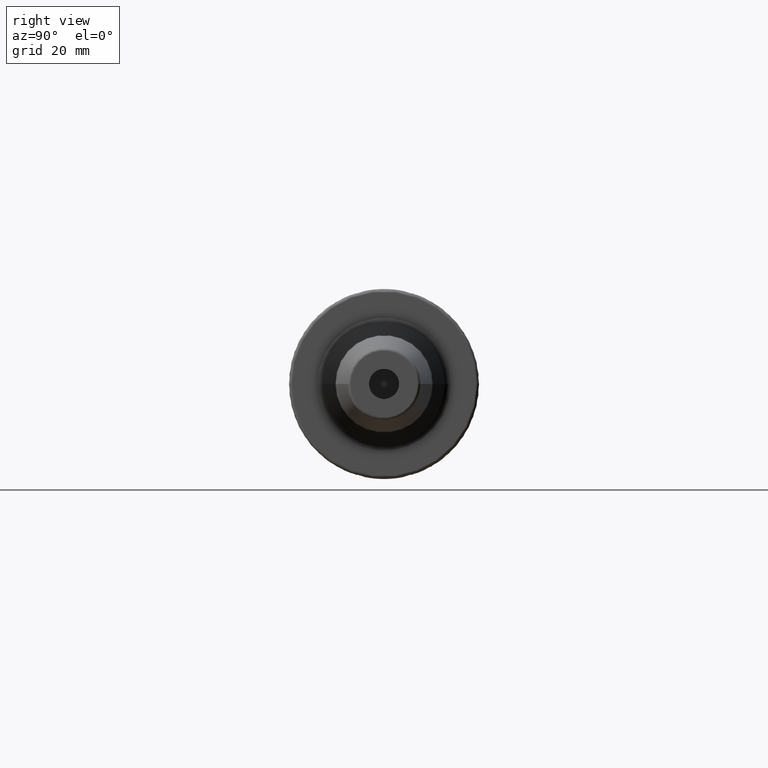
[diagram: clean part render]
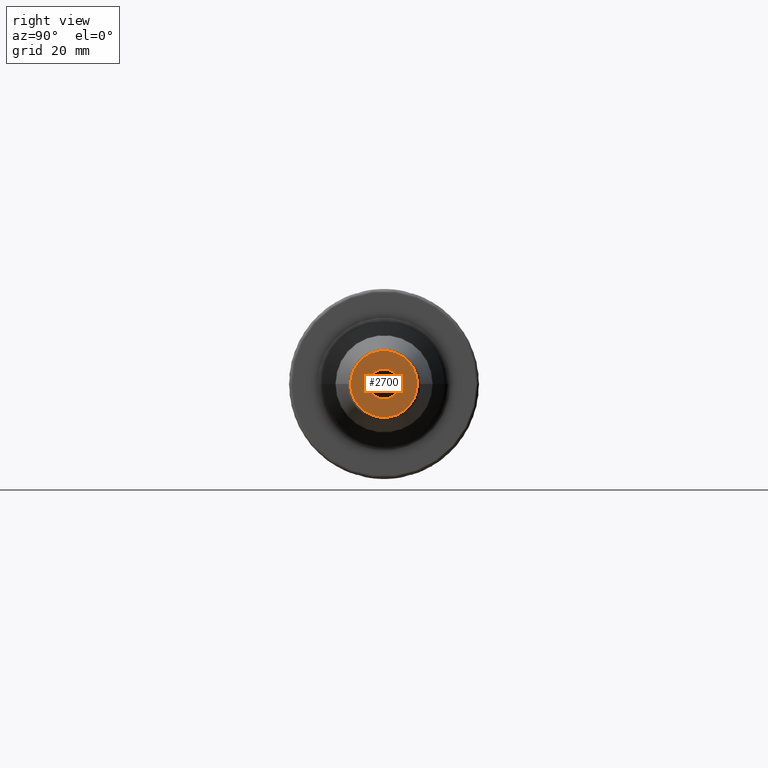
[diagram: same view with one face highlighted and labeled with its STEP entity id]
A machine part, right view. The second image highlights one B-rep face of the part: STEP entity #2700.
In plain terms, the highlighted planar face has unit normal (1, 0, 0).
Its self-contained STEP definition (entity closure, byte-faithful):
#932=CARTESIAN_POINT('',(1.6E2,0.E0,0.E0));
#933=DIRECTION('',(-1.E0,0.E0,0.E0));
#934=DIRECTION('',(0.E0,1.E0,0.E0));
#935=AXIS2_PLACEMENT_3D('',#932,#933,#934);
#937=CARTESIAN_POINT('',(1.6E2,0.E0,0.E0));
#938=DIRECTION('',(-1.E0,0.E0,0.E0));
#939=DIRECTION('',(0.E0,-1.E0,0.E0));
#940=AXIS2_PLACEMENT_3D('',#937,#938,#939);
#942=CARTESIAN_POINT('',(1.6E2,0.E0,0.E0));
#943=DIRECTION('',(1.E0,0.E0,0.E0));
#944=DIRECTION('',(0.E0,1.E0,0.E0));
#945=AXIS2_PLACEMENT_3D('',#942,#943,#944);
#947=CARTESIAN_POINT('',(1.6E2,0.E0,0.E0));
#948=DIRECTION('',(1.E0,0.E0,0.E0));
#949=DIRECTION('',(0.E0,-1.E0,0.E0));
#950=AXIS2_PLACEMENT_3D('',#947,#948,#949);
#1417=CARTESIAN_POINT('',(1.6E2,5.E0,0.E0));
#1418=VERTEX_POINT('',#1417);
#1419=CARTESIAN_POINT('',(1.6E2,-5.E0,0.E0));
#1420=VERTEX_POINT('',#1419);
#1429=CARTESIAN_POINT('',(1.6E2,1.107560950834E1,0.E0));
#1430=CARTESIAN_POINT('',(1.6E2,-1.107560950834E1,0.E0));
#1431=VERTEX_POINT('',#1429);
#1432=VERTEX_POINT('',#1430);
#2685=CARTESIAN_POINT('',(1.6E2,0.E0,0.E0));
#2686=DIRECTION('',(1.E0,0.E0,0.E0));
#2687=DIRECTION('',(0.E0,-1.E0,0.E0));
#2688=AXIS2_PLACEMENT_3D('',#2685,#2686,#2687);
#2689=PLANE('',#2688);
#2690=ORIENTED_EDGE('',*,*,#2667,.T.);
#2691=ORIENTED_EDGE('',*,*,#2652,.T.);
#2692=EDGE_LOOP('',(#2690,#2691));
#2693=FACE_OUTER_BOUND('',#2692,.F.);
#2695=ORIENTED_EDGE('',*,*,#2694,.T.);
#2697=ORIENTED_EDGE('',*,*,#2696,.T.);
#2698=EDGE_LOOP('',(#2695,#2697));
#2699=FACE_BOUND('',#2698,.F.);
#2700=ADVANCED_FACE('',(#2693,#2699),#2689,.T.);
#936=CIRCLE('',#935,1.107560950834E1);
#941=CIRCLE('',#940,1.107560950834E1);
#946=CIRCLE('',#945,5.E0);
#951=CIRCLE('',#950,5.E0);
#2652=EDGE_CURVE('',#1432,#1431,#941,.T.);
#2667=EDGE_CURVE('',#1431,#1432,#936,.T.);
#2694=EDGE_CURVE('',#1418,#1420,#946,.T.);
#2696=EDGE_CURVE('',#1420,#1418,#951,.T.);